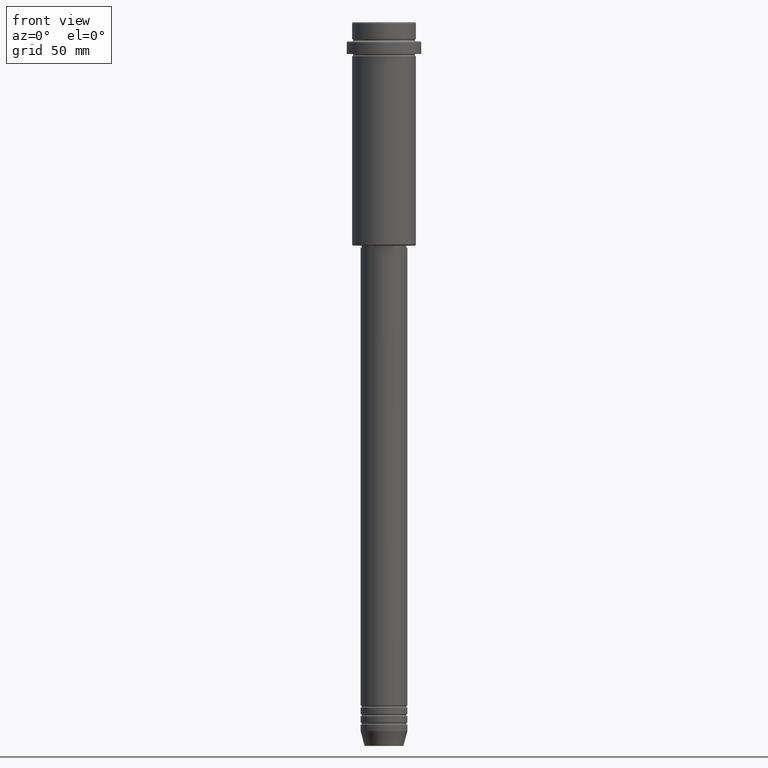
[diagram: clean part render]
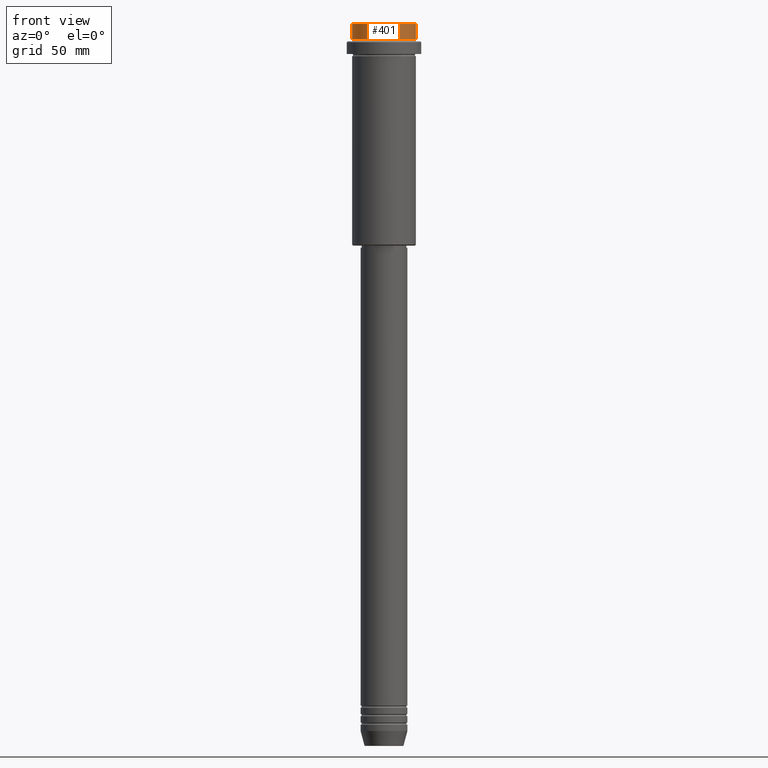
[diagram: same view with one face highlighted and labeled with its STEP entity id]
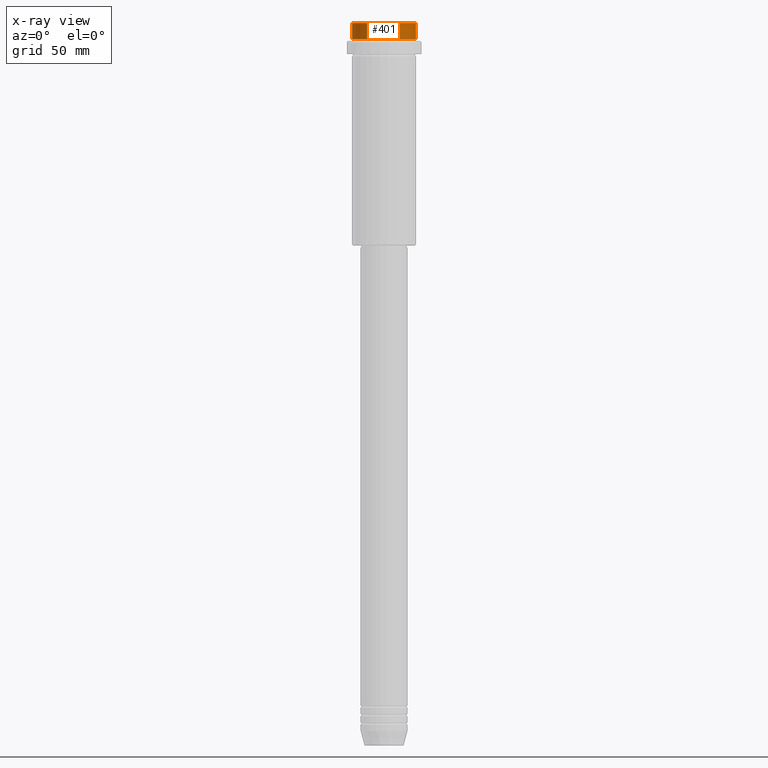
[diagram: x-ray of the same camera — body ghosted, the highlighted face saturated]
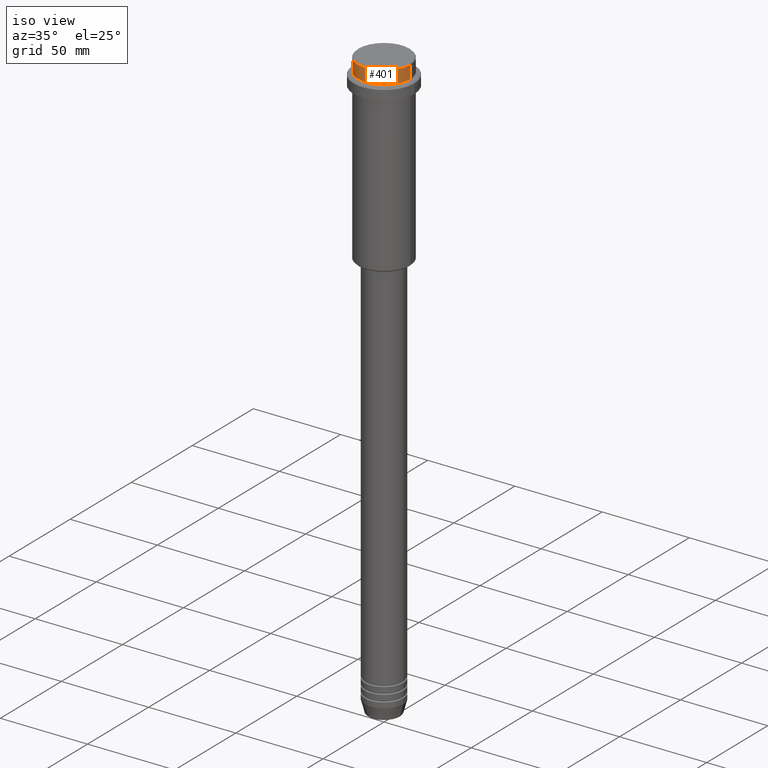
[diagram: same view with one face highlighted and labeled with its STEP entity id]
A machine part, front view. The second image highlights one B-rep face of the part: STEP entity #401.
The next image is the same camera in x-ray: the body ghosted, the highlighted face saturated — about 0% of this face is hidden behind the body in this view.
A second angle (iso view) of the same face is appended — the face is thin or edge-on in the first view.
In plain terms, the highlighted cylindrical surface (edge-blend (fillet) strip) has radius 15 mm, axis along (-0, -0, 1).
Its self-contained STEP definition (entity closure, byte-faithful):
#31 = CARTESIAN_POINT ( 'NONE',  ( -15.00000000000000000, 1.836970198721029589E-15, -0.5000000000000107692 ) ) ;
#91 = CARTESIAN_POINT ( 'NONE',  ( 0.000000000000000000, 0.000000000000000000, -0.5000000000000107692 ) ) ;
#101 = EDGE_CURVE ( 'NONE', #958, #790, #241, .T. ) ;
#110 = LINE ( 'NONE', #866, #237 ) ;
#159 = AXIS2_PLACEMENT_3D ( 'NONE', #561, #712, #975 ) ;
#172 = DIRECTION ( 'NONE',  ( 1.000000000000000000, 0.000000000000000000, 0.000000000000000000 ) ) ;
#201 = CARTESIAN_POINT ( 'NONE',  ( 15.00000000000000000, 0.000000000000000000, -0.5000000000000107692 ) ) ;
#233 = CIRCLE ( 'NONE', #1069, 15.00000000000000000 ) ;
#237 = VECTOR ( 'NONE', #446, 1000.000000000000000 ) ;
#241 = LINE ( 'NONE', #1332, #1066 ) ;
#261 = ORIENTED_EDGE ( 'NONE', *, *, #631, .T. ) ;
#341 = ORIENTED_EDGE ( 'NONE', *, *, #101, .T. ) ;
#382 = CARTESIAN_POINT ( 'NONE',  ( 15.00000000000000000, 0.000000000000000000, -7.999999999999998224 ) ) ;
#383 = FACE_OUTER_BOUND ( 'NONE', #505, .T. ) ;
#388 = ORIENTED_EDGE ( 'NONE', *, *, #641, .T. ) ;
#401 = ADVANCED_FACE ( 'NONE', ( #383 ), #924, .T. ) ;
#446 = DIRECTION ( 'NONE',  ( -0.000000000000000000, -0.000000000000000000, 1.000000000000000000 ) ) ;
#505 = EDGE_LOOP ( 'NONE', ( #1141, #261, #341, #388 ) ) ;
#527 = VERTEX_POINT ( 'NONE', #31 ) ;
#545 = DIRECTION ( 'NONE',  ( -0.000000000000000000, -0.000000000000000000, 1.000000000000000000 ) ) ;
#561 = CARTESIAN_POINT ( 'NONE',  ( 0.000000000000000000, 0.000000000000000000, 0.000000000000000000 ) ) ;
#631 = EDGE_CURVE ( 'NONE', #1016, #958, #740, .T. ) ;
#641 = EDGE_CURVE ( 'NONE', #790, #527, #233, .T. ) ;
#712 = DIRECTION ( 'NONE',  ( -0.000000000000000000, -0.000000000000000000, 1.000000000000000000 ) ) ;
#731 = DIRECTION ( 'NONE',  ( 1.000000000000000000, 0.000000000000000000, 0.000000000000000000 ) ) ;
#740 = CIRCLE ( 'NONE', #761, 15.00000000000000000 ) ;
#761 = AXIS2_PLACEMENT_3D ( 'NONE', #826, #832, #172 ) ;
#790 = VERTEX_POINT ( 'NONE', #201 ) ;
#826 = CARTESIAN_POINT ( 'NONE',  ( 0.000000000000000000, 0.000000000000000000, -7.999999999999998224 ) ) ;
#832 = DIRECTION ( 'NONE',  ( -0.000000000000000000, -0.000000000000000000, 1.000000000000000000 ) ) ;
#866 = CARTESIAN_POINT ( 'NONE',  ( -15.00000000000000000, 1.836970198721029589E-15, 0.000000000000000000 ) ) ;
#924 = CYLINDRICAL_SURFACE ( 'NONE', #159, 15.00000000000000000 ) ;
#931 = CARTESIAN_POINT ( 'NONE',  ( -15.00000000000000000, 1.836970198721029589E-15, -7.999999999999998224 ) ) ;
#958 = VERTEX_POINT ( 'NONE', #382 ) ;
#975 = DIRECTION ( 'NONE',  ( 1.000000000000000000, 0.000000000000000000, 0.000000000000000000 ) ) ;
#1016 = VERTEX_POINT ( 'NONE', #931 ) ;
#1060 = DIRECTION ( 'NONE',  ( 0.000000000000000000, 0.000000000000000000, -1.000000000000000000 ) ) ;
#1066 = VECTOR ( 'NONE', #545, 1000.000000000000000 ) ;
#1069 = AXIS2_PLACEMENT_3D ( 'NONE', #91, #1060, #731 ) ;
#1122 = EDGE_CURVE ( 'NONE', #1016, #527, #110, .T. ) ;
#1141 = ORIENTED_EDGE ( 'NONE', *, *, #1122, .F. ) ;
#1332 = CARTESIAN_POINT ( 'NONE',  ( 15.00000000000000000, 0.000000000000000000, 0.000000000000000000 ) ) ;